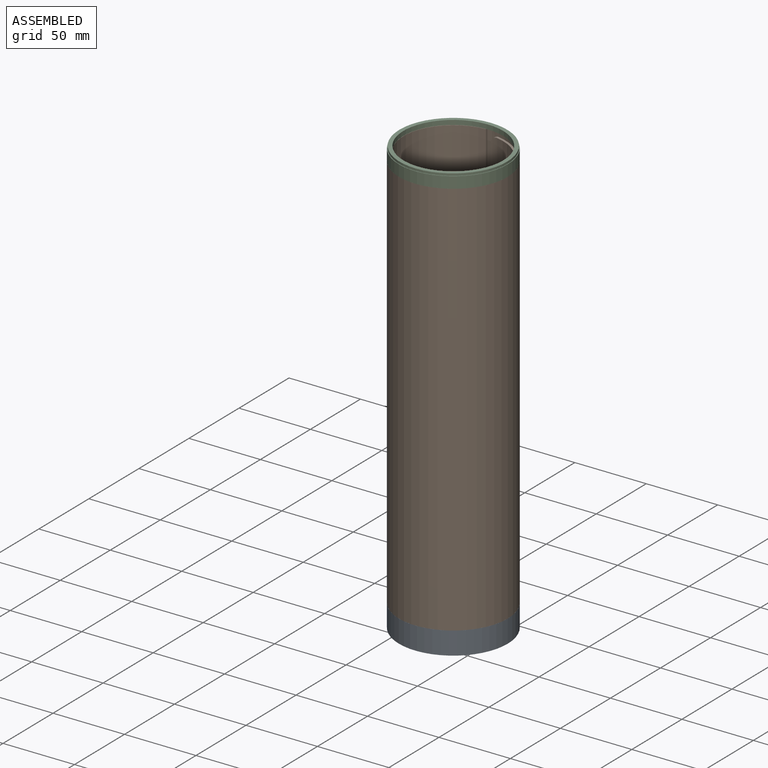
[diagram: assembled view]
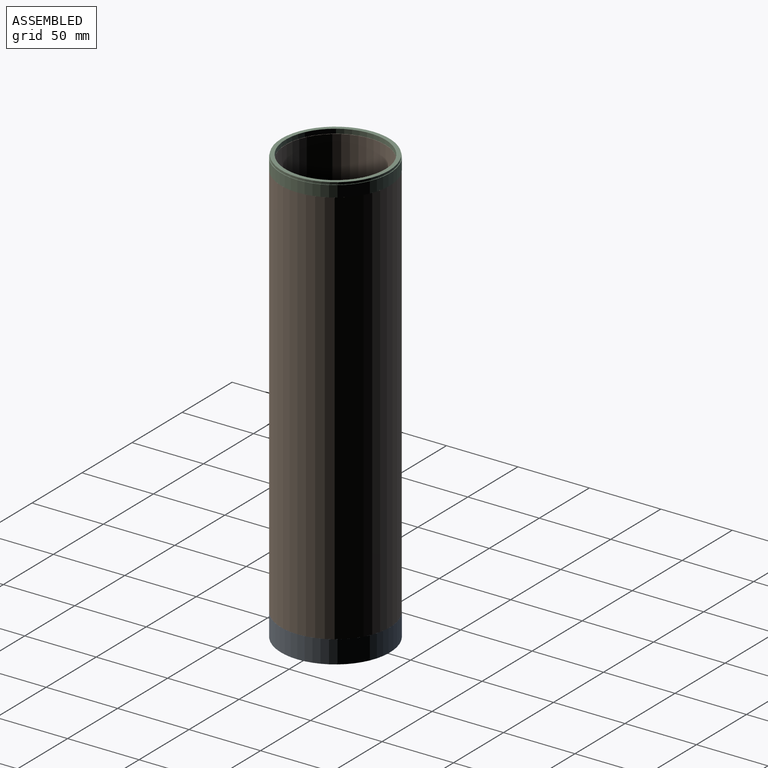
[diagram: assembled view, second angle]
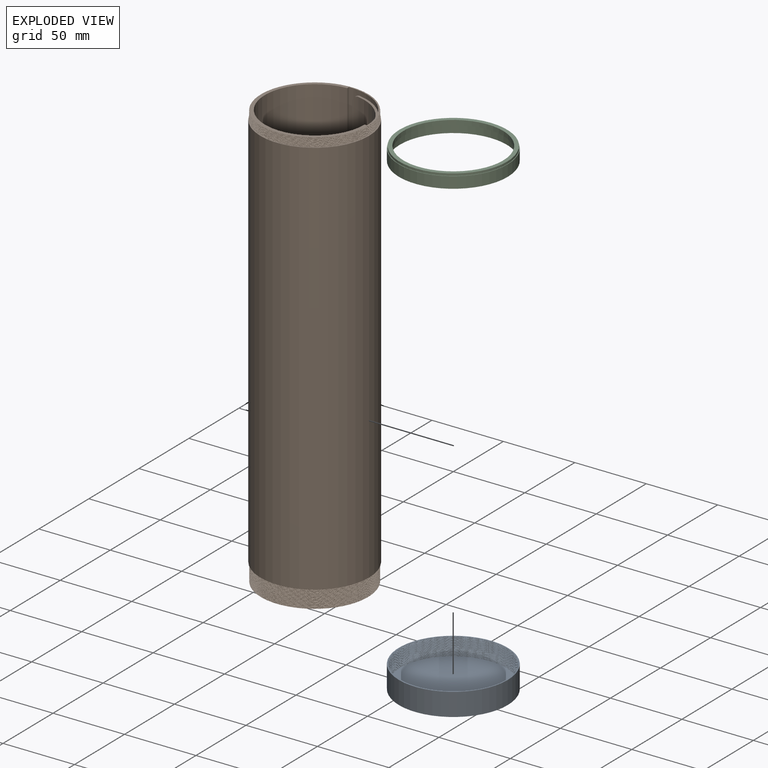
[diagram: exploded view]
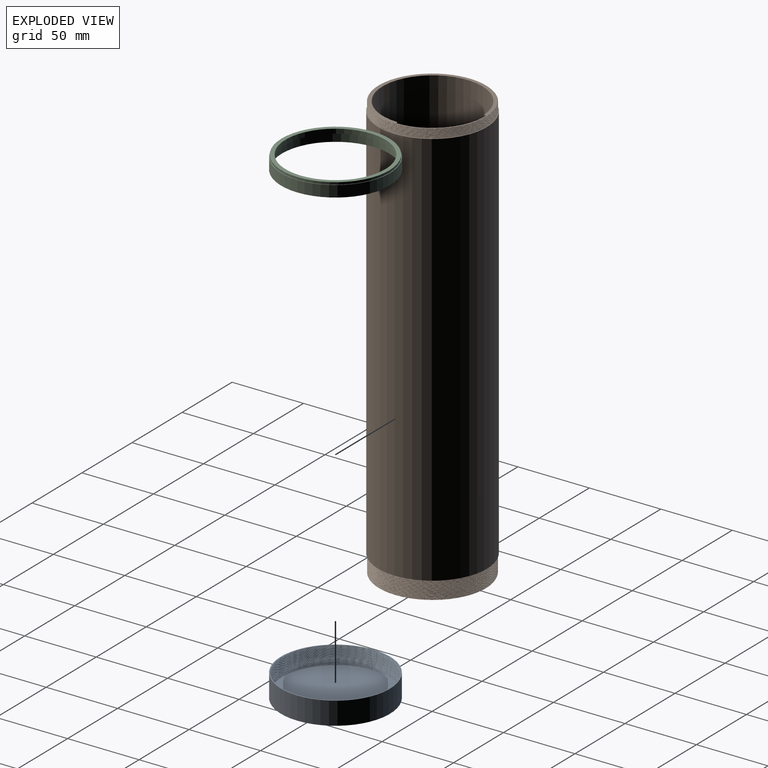
[diagram: exploded view, second angle]
ASSEMBLY  parts=3 mates=2
PART A: 8 faces, bbox 76.8x87.5x16.7 mm
  f0: cylinder r=38.1mm len=76.2mm, axis (0,0,-1), area 3800.3mm2, adj f1,f7
  f1: plane 76.81x76.81mm, normal (0,0,1), area 158.3mm2, adj f0,f2,f3,f4,f5
  f2: bspline ~86.82x75.19mm, area 375mm2, adj f1,f4,f5,f6
  f3: bspline ~86.82x75.19mm, area 1864.5mm2, adj f1,f4,f5,f6
  f4: bspline ~86.87x75.23mm, area 435.5mm2, adj f1,f2,f3,f6
  f5: cylinder r=37.31mm len=74.61mm, axis (0,0,1), area 413.8mm2, adj f1,f2,f3,f6
  f6: plane 75.46x75.46mm, normal (0,0,1), area 4402.1mm2, adj f2,f3,f4,f5
  f7: plane 76.2x76.2mm, normal (0,0,-1), area 4560.4mm2, adj f0
PART B: 23 faces, bbox 77x87.5x299.4 mm
  f0: cylinder r=37.51mm len=75.01mm, axis (0,0,-1), area 431.6mm2, adj f2,f20,f21,f22
  f1: cylinder r=38.1mm len=279.4mm, axis (0,0,-1), area 66885.4mm2, adj f14,f18
  f2: plane 75.25x75.21mm, normal (0,0,-1), area 543.4mm2, adj f0,f5,f6,f7,f8,f19,f20,f21
  f3: plane 75.38x75.34mm, normal (0,0,1), area 471.8mm2, adj f4,f6,f7,f8,f9,f10,f13,f15
  f4: cylinder r=37.57mm len=75.14mm, axis (0,0,1), area 237.4mm2, adj f3,f14,f16,f17
  f5: plane 289.94x1.63mm, normal (-1,0,0), area 471.3mm2, adj f2,f6,f8,f12
  f6: cylinder r=34.92mm len=298.2mm, axis (0,0,-1), area 64291.9mm2, adj f2,f3,f5,f7,f9,f11,f12
  f7: plane 298.2x1.63mm, normal (1,0,0), area 484.7mm2, adj f2,f3,f6,f8
  f8: plane 298.2x3.25mm, normal (0,-1,0), area 969.3mm2, adj f2,f3,f5,f7,f13
  f9: plane 3.18x1.59mm, normal (0,1,0), area 5mm2, adj f3,f6,f10,f11
  f10: cylinder r=36.51mm len=36.45mm, axis (0,0,1), area 178.7mm2, adj f3,f9,f11,f12,f13
  f11: plane 35.89x29.81mm, normal (0,0,1), area 78.4mm2, adj f6,f9,f10,f12
  f12: cylinder r=5.08mm len=5.08mm, axis (0,1,0), area 13.4mm2, adj f5,f6,f10,f11,f13
  f13: cylinder r=5.08mm len=8.26mm, axis (0,0,1), area 4mm2, adj f3,f8,f10,f12
  f14: plane 76.98x76.98mm, normal (0,0,1), area 164.9mm2, adj f1,f4,f15,f16,f17
  f15: bspline ~86.1x74.57mm, area 407.4mm2, adj f3,f14,f16,f17
  f16: bspline ~86.77x75.14mm, area 912.8mm2, adj f3,f4,f14,f15
  f17: bspline ~86.77x75.14mm, area 916.7mm2, adj f3,f4,f14,f15
  f18: plane 76.66x76.66mm, normal (0,0,-1), area 205.4mm2, adj f1,f19,f20,f21,f22
  f19: bspline ~85.96x74.44mm, area 821.4mm2, adj f2,f18,f20,f21
  f20: bspline ~86.62x75.01mm, area 1834.8mm2, adj f0,f2,f18,f19,f22
  f21: bspline ~86.62x75.01mm, area 1839.1mm2, adj f0,f2,f18,f19,f22
  f22: cone r=37.51mm half-angle=63.4deg, axis (0,0,-1), area 28.7mm2, adj f0,f18,f20,f21
PART C: 8 faces, bbox 76.2x76.2x9.5 mm
  f0: cylinder r=38.1mm len=76.2mm, axis (0,0,1), area 1900.2mm2, adj f3,f7
  f1: plane 75.41x75.41mm, normal (0,0,1), area 633.9mm2, adj f5,f6
  f2: cylinder r=37.57mm len=75.14mm, axis (0,0,1), area 1499mm2, adj f3,f4
  f3: plane 76.2x76.2mm, normal (0,0,-1), area 125.8mm2, adj f0,f2
  f4: plane 75.14x75.14mm, normal (0,0,-1), area 602.6mm2, adj f2,f5
  f5: cylinder r=34.92mm len=69.85mm, axis (0,0,-1), area 696.7mm2, adj f1,f4
  f6: cylinder r=37.7mm len=75.41mm, axis (0,0,1), area 376.1mm2, adj f1,f7
  f7: plane 76.2x76.2mm, normal (0,0,1), area 94.5mm2, adj f0,f6
PLACE A t=(-24.93,0,-489.32)mm
PLACE B t=(-24.93,0,-489.19)mm
PLACE C t=(-24.93,0,-190.87)mm
MATE fastened B.f1 <-> A.f0  axis (0,0,-1) through (-24.93,0,-476.62)mm
MATE fastened C.f0 <-> B.f1  axis (0,0,-1) through (-24.93,0,-197.22)mm
